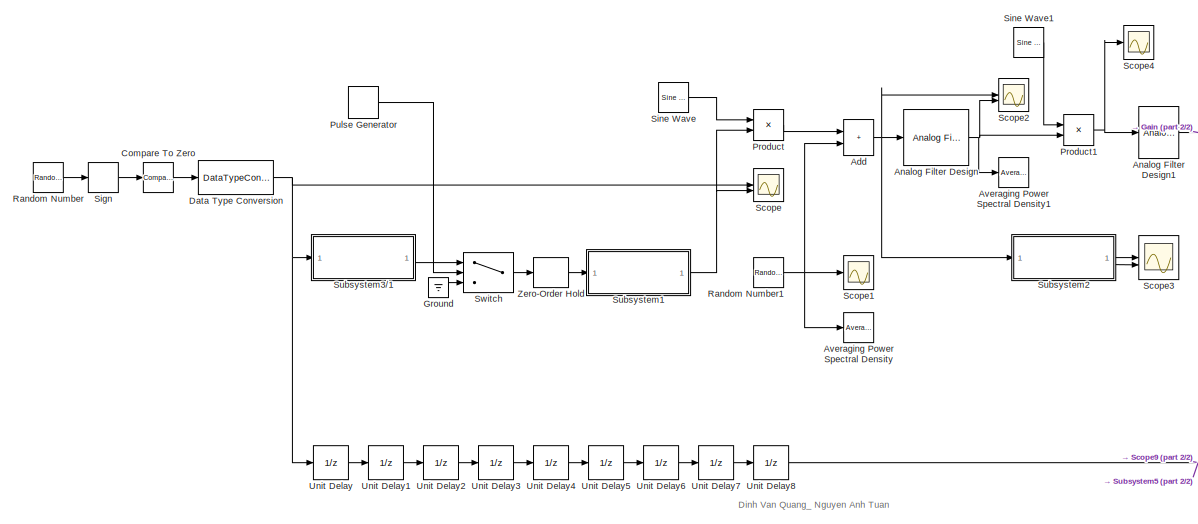
[diagram: root canvas - part 1/2, left side, full height]
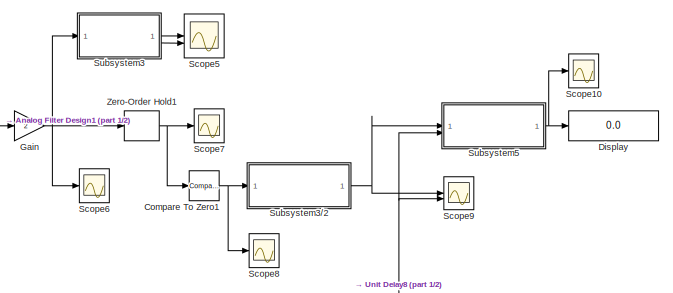
[diagram: root canvas - part 2/2, top right region]
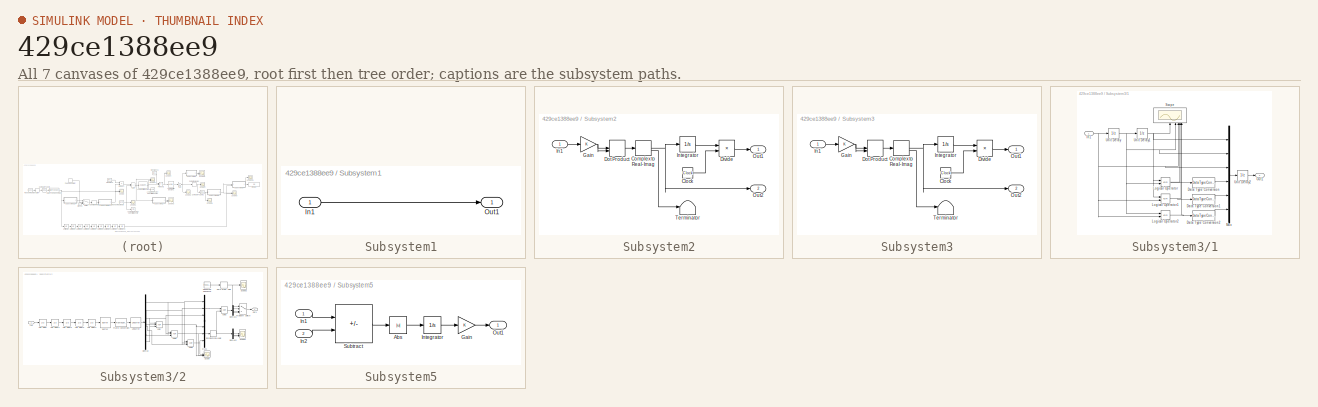
[diagram: thumbnail index - all 7 canvases of the model, root first then tree order]
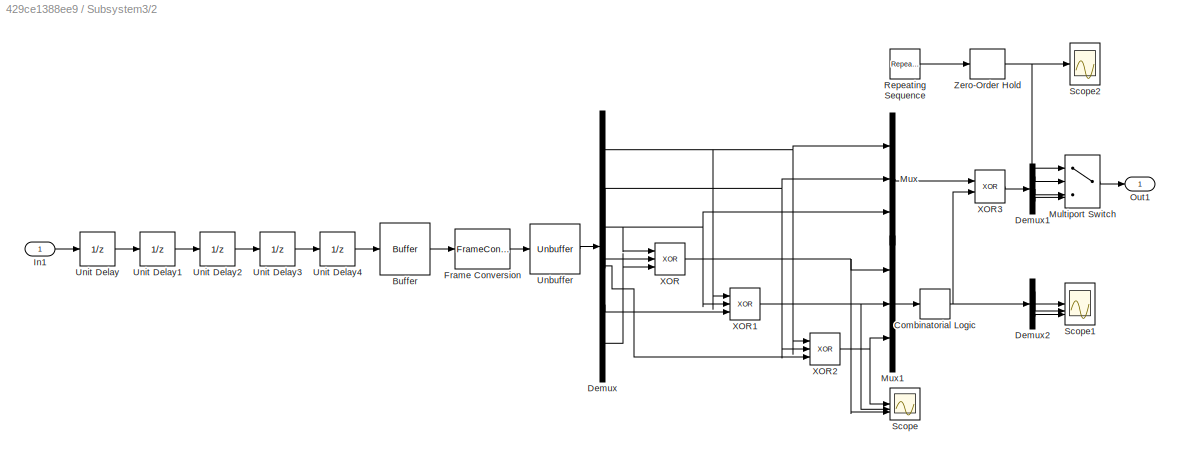
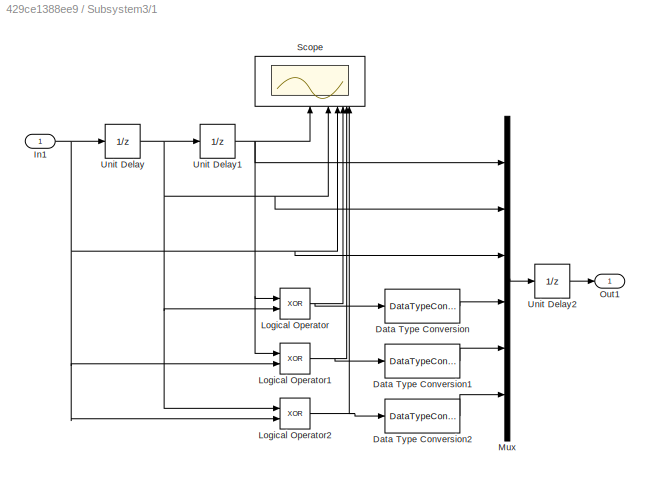
MODEL slx_429ce1388ee9
KIND model
CONFIG AbsTol = auto
CONFIG EnableMultiTasking = on
CONFIG FixedStep = auto
CONFIG MaxStep = auto
CONFIG MinStep = auto
CONFIG RelTol = 1e-3
CONFIG SampleTimeConstraint = Unconstrained
CONFIG SolverName = VariableStepAuto
CONFIG StartTime = 0.0
CONFIG StopTime = 10.0
BLOCK [Sum] Add
  IconShape = rectangular
BLOCK [Reference] Analog Filter Design  REF=dspfdesign/Analog
Filter Design
  SourceBlock = dspfdesign/Analog\nFilter Design
  SourceType = Analog Filter Design
BLOCK [Reference] Analog Filter Design1  REF=dspfdesign/Analog
Filter Design
  SourceBlock = dspfdesign/Analog\nFilter Design
  SourceType = Analog Filter Design
BLOCK [Reference] Averaging Power Spectral Density  REF=simulink_extras/Additional
Sinks/Averaging
Power Spectral
Density
  SourceBlock = simulink_extras/Additional\nSinks/Averaging\nPower Spectral\nDensity
  SourceType = Averaging Power Spectral Density
BLOCK [Reference] Averaging Power Spectral Density1  REF=simulink_extras/Additional
Sinks/Averaging
Power Spectral
Density
  SourceBlock = simulink_extras/Additional\nSinks/Averaging\nPower Spectral\nDensity
  SourceType = Averaging Power Spectral Density
BLOCK [Reference] Compare To Zero  REF=simulink/Logic and Bit
Operations/Compare
To Zero
  SourceBlock = simulink/Logic and Bit\nOperations/Compare\nTo Zero
  SourceType = Compare To Zero
BLOCK [Reference] Compare To Zero1  REF=simulink/Logic and Bit
Operations/Compare
To Zero
  SourceBlock = simulink/Logic and Bit\nOperations/Compare\nTo Zero
  SourceType = Compare To Zero
BLOCK [DataTypeConversion] Data Type Conversion
  OutDataTypeStr = double
  RndMeth = Floor
  SaturateOnIntegerOverflow = off
BLOCK [Display] Display
  Decimation = 1
BLOCK [Gain] Gain
  Gain = 2
BLOCK [Ground] Ground
BLOCK [Product] Product
BLOCK [Product] Product1
BLOCK [DiscretePulseGenerator] Pulse Generator
  Period = 10
  PulseType = Time based
  PulseWidth = 5
BLOCK [RandomNumber] Random Number
  SampleTime = 0.1
BLOCK [RandomNumber] Random Number1
  SampleTime = 0.1
BLOCK [Scope] Scope
  Floating = off
  NumInputPorts = 2
  ScopeSpecificationString = C++SS(StrPVP('SaveName','ScopeData'),StrPVP('LimitDataPoints','on'),StrPVP('DataFormat','Array'),StrPVP('Decimation','1'),StrPVP('BlockParamSampleInput','off'))
BLOCK [Scope] Scope1
  Floating = off
  NumInputPorts = 1
  ScopeSpecificationString = C++SS(StrPVP('SaveName','ScopeData'),StrPVP('SaveName','ScopeData1'),StrPVP('LimitDataPoints','on'),StrPVP('DataFormat','Array'),StrPVP('Decimation','1'),StrPVP('BlockParamSampleInput','off'))
BLOCK [Scope] Scope10
  Floating = off
  NumInputPorts = 1
  ScopeSpecificationString = C++SS(StrPVP('SaveName','ScopeData'),StrPVP('SaveName','ScopeData1'),StrPVP('SaveName','ScopeData4'),StrPVP('SaveName','ScopeData7'),StrPVP('SaveName','ScopeData10'),StrPVP('LimitDataPoints','on'),StrPVP('DataFormat','Array'),StrPVP('Decimation','1'),StrPVP('BlockParamSampleInput','off'))
BLOCK [Scope] Scope2
  Floating = off
  NumInputPorts = 2
  ScopeSpecificationString = Simulink.scopes.TimeScopeBlockCfg('CurrentConfiguration', extmgr.ConfigurationSet(extmgr.Configuration('Core','General UI',true),extmgr.Configuration('Core','Source UI',true),extmgr.Configuration('Sources','WiredSimulink',true,'DataLoggingVariableName','ScopeData2','DataLoggingLimitDataPoints',true,'DataLoggingSaveFormat','Array','DataLoggingDecimation','1','DataLoggingDecimateData',true),extmgr.C...<+165ch>
BLOCK [Scope] Scope3
  Floating = off
  NumInputPorts = 2
  ScopeSpecificationString = C++SS(StrPVP('SaveName','ScopeData'),StrPVP('SaveName','ScopeData2'),StrPVP('SaveName','ScopeData3'),StrPVP('LimitDataPoints','on'),StrPVP('DataFormat','Array'),StrPVP('Decimation','1'),StrPVP('BlockParamSampleInput','off'))
BLOCK [Scope] Scope4
  Floating = off
  NumInputPorts = 1
  ScopeSpecificationString = Simulink.scopes.TimeScopeBlockCfg('CurrentConfiguration', extmgr.ConfigurationSet(extmgr.Configuration('Core','General UI',true),extmgr.Configuration('Core','Source UI',true),extmgr.Configuration('Sources','WiredSimulink',true,'DataLoggingVariableName','ScopeData4','DataLoggingLimitDataPoints',true,'DataLoggingSaveFormat','Array','DataLoggingDecimation','1','DataLoggingDecimateData',true),extmgr.C...<+165ch>
BLOCK [Scope] Scope5
  Floating = off
  NumInputPorts = 2
  ScopeSpecificationString = C++SS(StrPVP('SaveName','ScopeData'),StrPVP('SaveName','ScopeData2'),StrPVP('SaveName','ScopeData3'),StrPVP('SaveName','ScopeData5'),StrPVP('LimitDataPoints','on'),StrPVP('DataFormat','Array'),StrPVP('Decimation','1'),StrPVP('BlockParamSampleInput','off'))
BLOCK [Scope] Scope6
  Floating = off
  NumInputPorts = 1
  ScopeSpecificationString = Simulink.scopes.TimeScopeBlockCfg('CurrentConfiguration', extmgr.ConfigurationSet(extmgr.Configuration('Core','General UI',true),extmgr.Configuration('Core','Source UI',true),extmgr.Configuration('Sources','WiredSimulink',true,'DataLoggingVariableName','ScopeData6','DataLoggingLimitDataPoints',true,'DataLoggingSaveFormat','Array','DataLoggingDecimation','1','DataLoggingDecimateData',true),extmgr.C...<+165ch>
BLOCK [Scope] Scope7
  Floating = off
  NumInputPorts = 1
  ScopeSpecificationString = Simulink.scopes.TimeScopeBlockCfg('CurrentConfiguration', extmgr.ConfigurationSet(extmgr.Configuration('Core','General UI',true),extmgr.Configuration('Core','Source UI',true),extmgr.Configuration('Sources','WiredSimulink',true,'DataLoggingVariableName','ScopeData7','DataLoggingLimitDataPoints',true,'DataLoggingSaveFormat','Array','DataLoggingDecimation','1','DataLoggingDecimateData',true),extmgr.C...<+165ch>
BLOCK [Scope] Scope8
  Floating = off
  NumInputPorts = 1
  ScopeSpecificationString = C++SS(StrPVP('SaveName','ScopeData'),StrPVP('SaveName','ScopeData1'),StrPVP('SaveName','ScopeData4'),StrPVP('SaveName','ScopeData7'),StrPVP('SaveName','ScopeData8'),StrPVP('LimitDataPoints','on'),StrPVP('DataFormat','Array'),StrPVP('Decimation','1'),StrPVP('BlockParamSampleInput','off'))
BLOCK [Scope] Scope9
  Floating = off
  NumInputPorts = 2
  ScopeSpecificationString = C++SS(StrPVP('SaveName','ScopeData'),StrPVP('SaveName','ScopeData9'),StrPVP('LimitDataPoints','on'),StrPVP('DataFormat','Array'),StrPVP('Decimation','1'),StrPVP('BlockParamSampleInput','off'))
BLOCK [Signum] Sign
BLOCK [Reference] Sine Wave  REF=dspsrcs4/Sine Wave
  SourceBlock = dspsrcs4/Sine Wave
  SourceType = Sine Wave
BLOCK [Reference] Sine Wave1  REF=dspsrcs4/Sine Wave
  SourceBlock = dspsrcs4/Sine Wave
  SourceType = Sine Wave
BLOCK [SubSystem] Subsystem1
BLOCK [Inport] Subsystem1/In1
BLOCK [Outport] Subsystem1/Out1
BLOCK [SubSystem] Subsystem2
BLOCK [Clock] Subsystem2/Clock
BLOCK [ComplexToRealImag] Subsystem2/Complex to Real-Imag
BLOCK [Product] Subsystem2/Divide
  Inputs = */
BLOCK [DotProduct] Subsystem2/Dot Product
  OutDataTypeStr = Inherit: Inherit via internal rule
BLOCK [Gain] Subsystem2/Gain
BLOCK [Inport] Subsystem2/In1
BLOCK [Integrator] Subsystem2/Integrator
BLOCK [Outport] Subsystem2/Out1
BLOCK [Outport] Subsystem2/Out2
  Port = 2
BLOCK [Terminator] Subsystem2/Terminator
BLOCK [SubSystem] Subsystem3
BLOCK [SubSystem] Subsystem3//1
BLOCK [DataTypeConversion] Subsystem3//1/Data Type Conversion
  RndMeth = Floor
  SaturateOnIntegerOverflow = off
BLOCK [DataTypeConversion] Subsystem3//1/Data Type Conversion1
  RndMeth = Floor
  SaturateOnIntegerOverflow = off
BLOCK [DataTypeConversion] Subsystem3//1/Data Type Conversion2
  RndMeth = Floor
  SaturateOnIntegerOverflow = off
BLOCK [Inport] Subsystem3//1/In1
BLOCK [Logic] Subsystem3//1/Logical Operator
  AllPortsSameDT = off
  Operator = XOR
  OutDataTypeStr = boolean
BLOCK [Logic] Subsystem3//1/Logical Operator1
  AllPortsSameDT = off
  Operator = XOR
  OutDataTypeStr = boolean
BLOCK [Logic] Subsystem3//1/Logical Operator2
  AllPortsSameDT = off
  Operator = XOR
  OutDataTypeStr = boolean
BLOCK [Mux] Subsystem3//1/Mux
  DisplayOption = bar
  Inputs = 6
BLOCK [Outport] Subsystem3//1/Out1
BLOCK [Scope] Subsystem3//1/Scope
  Floating = off
  NameLocation = right
  NumInputPorts = 6
  ScopeSpecificationString = C++SS(StrPVP('SaveName','ScopeData1'),StrPVP('LimitDataPoints','on'),StrPVP('DataFormat','Array'),StrPVP('Decimation','1'),StrPVP('BlockParamSampleInput','off'))
BLOCK [UnitDelay] Subsystem3//1/Unit Delay
  HasFrameUpgradeWarning = on
  SampleTime = -1
BLOCK [UnitDelay] Subsystem3//1/Unit Delay1
  HasFrameUpgradeWarning = on
  SampleTime = -1
BLOCK [UnitDelay] Subsystem3//1/Unit Delay2
  HasFrameUpgradeWarning = on
  SampleTime = -1
BLOCK [SubSystem] Subsystem3//2
BLOCK [Buffer] Subsystem3//2/Buffer
  OutputFrames = off
BLOCK [CombinatorialLogic] Subsystem3//2/Combinatorial Logic
BLOCK [Demux] Subsystem3//2/Demux
  Outputs = 6
BLOCK [Demux] Subsystem3//2/Demux1
  Outputs = 3
BLOCK [Demux] Subsystem3//2/Demux2
  Outputs = 3
BLOCK [FrameConversion] Subsystem3//2/Frame Conversion
  OutFrame = Sample-based
BLOCK [Inport] Subsystem3//2/In1
BLOCK [MultiPortSwitch] Subsystem3//2/Multiport Switch
  InputSameDT = off
  SaturateOnIntegerOverflow = off
BLOCK [Mux] Subsystem3//2/Mux
  DisplayOption = bar
  Inputs = 3
BLOCK [Mux] Subsystem3//2/Mux1
  DisplayOption = bar
  Inputs = 3
BLOCK [Outport] Subsystem3//2/Out1
BLOCK [Reference] Subsystem3//2/Repeating Sequence  REF=simulink/Sources/Repeating
Sequence
  SourceBlock = simulink/Sources/Repeating\nSequence
  SourceType = Repeating table
BLOCK [Scope] Subsystem3//2/Scope
  Floating = off
  NumInputPorts = 3
  ScopeSpecificationString = Simulink.scopes.TimeScopeBlockCfg('CurrentConfiguration', extmgr.ConfigurationSet(extmgr.Configuration('Core','General UI',true),extmgr.Configuration('Core','Source UI',true),extmgr.Configuration('Sources','WiredSimulink',true,'DataLoggingVariableName','ScopeData2','DataLoggingLimitDataPoints',true,'DataLoggingSaveFormat','Array','DataLoggingDecimation','1','DataLoggingDecimateData',true),extmgr.C...<+183ch>
BLOCK [Scope] Subsystem3//2/Scope1
  Floating = off
  NumInputPorts = 3
  ScopeSpecificationString = C++SS(StrPVP('SaveName','ScopeData2'),StrPVP('SaveName','ScopeData3'),StrPVP('LimitDataPoints','on'),StrPVP('DataFormat','Array'),StrPVP('Decimation','1'),StrPVP('BlockParamSampleInput','off'))
BLOCK [Scope] Subsystem3//2/Scope2
  Floating = off
  NumInputPorts = 1
  ScopeSpecificationString = Simulink.scopes.TimeScopeBlockCfg('CurrentConfiguration', extmgr.ConfigurationSet(extmgr.Configuration('Core','General UI',true),extmgr.Configuration('Core','Source UI',true),extmgr.Configuration('Sources','WiredSimulink',true,'DataLoggingVariableName','ScopeData4'),extmgr.Configuration('Visuals','Time Domain',true),extmgr.Configuration('Tools','Plot Navigation',true),extmgr.Configuration('Tools',...<+58ch>
BLOCK [Unbuffer] Subsystem3//2/Unbuffer
BLOCK [UnitDelay] Subsystem3//2/Unit Delay
  HasFrameUpgradeWarning = on
  SampleTime = -1
BLOCK [UnitDelay] Subsystem3//2/Unit Delay1
  HasFrameUpgradeWarning = on
  SampleTime = -1
BLOCK [UnitDelay] Subsystem3//2/Unit Delay2
  HasFrameUpgradeWarning = on
  SampleTime = -1
BLOCK [UnitDelay] Subsystem3//2/Unit Delay3
  HasFrameUpgradeWarning = on
  SampleTime = -1
BLOCK [UnitDelay] Subsystem3//2/Unit Delay4
  HasFrameUpgradeWarning = on
  SampleTime = -1
BLOCK [Logic] Subsystem3//2/XOR
  AllPortsSameDT = off
  Inputs = 3
  Operator = XOR
  OutDataTypeStr = boolean
BLOCK [Logic] Subsystem3//2/XOR1
  AllPortsSameDT = off
  Inputs = 3
  Operator = XOR
  OutDataTypeStr = boolean
BLOCK [Logic] Subsystem3//2/XOR2
  AllPortsSameDT = off
  Inputs = 3
  Operator = XOR
  OutDataTypeStr = boolean
BLOCK [Logic] Subsystem3//2/XOR3
  AllPortsSameDT = off
  Operator = XOR
  OutDataTypeStr = boolean
BLOCK [ZeroOrderHold] Subsystem3//2/Zero-Order Hold
  SampleTime = -1
BLOCK [Clock] Subsystem3/Clock
BLOCK [ComplexToRealImag] Subsystem3/Complex to Real-Imag
BLOCK [Product] Subsystem3/Divide
  Inputs = */
BLOCK [DotProduct] Subsystem3/Dot Product
  OutDataTypeStr = Inherit: Inherit via internal rule
BLOCK [Gain] Subsystem3/Gain
BLOCK [Inport] Subsystem3/In1
BLOCK [Integrator] Subsystem3/Integrator
BLOCK [Outport] Subsystem3/Out1
BLOCK [Outport] Subsystem3/Out2
  Port = 2
BLOCK [Terminator] Subsystem3/Terminator
BLOCK [SubSystem] Subsystem5
BLOCK [Abs] Subsystem5/Abs
  SaturateOnIntegerOverflow = off
BLOCK [Gain] Subsystem5/Gain
BLOCK [Inport] Subsystem5/In1
BLOCK [Inport] Subsystem5/In2
  Port = 2
BLOCK [Integrator] Subsystem5/Integrator
BLOCK [Outport] Subsystem5/Out1
BLOCK [Sum] Subsystem5/Subtract
  IconShape = rectangular
  Inputs = +-
BLOCK [Switch] Switch
  InputSameDT = off
  SaturateOnIntegerOverflow = off
BLOCK [UnitDelay] Unit Delay
  HasFrameUpgradeWarning = on
  SampleTime = -1
BLOCK [UnitDelay] Unit Delay1
  HasFrameUpgradeWarning = on
  SampleTime = -1
BLOCK [UnitDelay] Unit Delay2
  HasFrameUpgradeWarning = on
  SampleTime = -1
BLOCK [UnitDelay] Unit Delay3
  HasFrameUpgradeWarning = on
  SampleTime = -1
BLOCK [UnitDelay] Unit Delay4
  HasFrameUpgradeWarning = on
  SampleTime = -1
BLOCK [UnitDelay] Unit Delay5
  HasFrameUpgradeWarning = on
  SampleTime = -1
BLOCK [UnitDelay] Unit Delay6
  HasFrameUpgradeWarning = on
  SampleTime = -1
BLOCK [UnitDelay] Unit Delay7
  HasFrameUpgradeWarning = on
  SampleTime = -1
BLOCK [UnitDelay] Unit Delay8
  HasFrameUpgradeWarning = on
  SampleTime = -1
BLOCK [ZeroOrderHold] Zero-Order Hold
  SampleTime = -1
BLOCK [ZeroOrderHold] Zero-Order Hold1
  SampleTime = -1
ANNOTATION (root): Dinh Van Quang_ Nguyen Anh Tuan
NET Add:1 -> Analog Filter Design:1, Scope2:1, Subsystem2:1
LINE Analog Filter Design1:1 -> Gain:1
NET Analog Filter Design:1 -> Averaging Power Spectral Density1:1, Product1:2, Scope2:2
NET Compare To Zero1:1 -> Scope8:1, Subsystem3//2:1
LINE Compare To Zero:1 -> Data Type Conversion:1
NET Data Type Conversion:1 -> Scope:1, Subsystem3//1:1, Unit Delay:1
NET Gain:1 -> Scope6:1, Subsystem3:1, Zero-Order Hold1:1
LINE Ground:1 -> Switch:3
NET Product1:1 -> Analog Filter Design1:1, Scope4:1
LINE Product:1 -> Add:1
LINE Pulse Generator:1 -> Switch:2
NET Random Number1:1 -> Add:2, Averaging Power Spectral Density:1, Scope1:1
LINE Random Number:1 -> Sign:1
LINE Sign:1 -> Compare To Zero:1
LINE Sine Wave1:1 -> Product1:1
LINE Sine Wave:1 -> Product:1
LINE Subsystem1/In1:1 -> Subsystem1/Out1:1
NET Subsystem1:1 -> Product:2, Scope:2
LINE Subsystem2/Clock:1 -> Subsystem2/Divide:2
NET Subsystem2/Complex to Real-Imag:1 -> Subsystem2/Integrator:1, Subsystem2/Out2:1
LINE Subsystem2/Complex to Real-Imag:2 -> Subsystem2/Terminator:1
LINE Subsystem2/Divide:1 -> Subsystem2/Out1:1
LINE Subsystem2/Dot Product:1 -> Subsystem2/Complex to Real-Imag:1
NET Subsystem2/Gain:1 -> Subsystem2/Dot Product:1, Subsystem2/Dot Product:2
LINE Subsystem2/In1:1 -> Subsystem2/Gain:1
LINE Subsystem2/Integrator:1 -> Subsystem2/Divide:1
LINE Subsystem2:1 -> Scope3:1
LINE Subsystem2:2 -> Scope3:2
LINE Subsystem3//1/Data Type Conversion1:1 -> Subsystem3//1/Mux:5
LINE Subsystem3//1/Data Type Conversion2:1 -> Subsystem3//1/Mux:6
LINE Subsystem3//1/Data Type Conversion:1 -> Subsystem3//1/Mux:4
NET Subsystem3//1/In1:1 -> Subsystem3//1/Logical Operator1:2, Subsystem3//1/Logical Operator2:2, Subsystem3//1/Mux:3, Subsystem3//1/Scope:3, Subsystem3//1/Unit Delay:1
NET Subsystem3//1/Logical Operator1:1 -> Subsystem3//1/Data Type Conversion1:1, Subsystem3//1/Scope:5
NET Subsystem3//1/Logical Operator2:1 -> Subsystem3//1/Data Type Conversion2:1, Subsystem3//1/Scope:6
NET Subsystem3//1/Logical Operator:1 -> Subsystem3//1/Data Type Conversion:1, Subsystem3//1/Scope:4
LINE Subsystem3//1/Mux:1 -> Subsystem3//1/Unit Delay2:1
NET Subsystem3//1/Unit Delay1:1 -> Subsystem3//1/Logical Operator1:1, Subsystem3//1/Logical Operator:1, Subsystem3//1/Mux:1, Subsystem3//1/Scope:1
LINE Subsystem3//1/Unit Delay2:1 -> Subsystem3//1/Out1:1
NET Subsystem3//1/Unit Delay:1 -> Subsystem3//1/Logical Operator2:1, Subsystem3//1/Logical Operator:2, Subsystem3//1/Mux:2, Subsystem3//1/Scope:2, Subsystem3//1/Unit Delay1:1
LINE Subsystem3//1:1 -> Switch:1
LINE Subsystem3//2/Buffer:1 -> Subsystem3//2/Frame Conversion:1
NET Subsystem3//2/Combinatorial Logic:1 -> Subsystem3//2/Demux2:1, Subsystem3//2/XOR3:2
LINE Subsystem3//2/Demux1:1 -> Subsystem3//2/Multiport Switch:2
LINE Subsystem3//2/Demux1:2 -> Subsystem3//2/Multiport Switch:3
LINE Subsystem3//2/Demux1:3 -> Subsystem3//2/Multiport Switch:4
LINE Subsystem3//2/Demux2:1 -> Subsystem3//2/Scope1:1
LINE Subsystem3//2/Demux2:2 -> Subsystem3//2/Scope1:2
LINE Subsystem3//2/Demux2:3 -> Subsystem3//2/Scope1:3
NET Subsystem3//2/Demux:1 -> Subsystem3//2/Mux:1, Subsystem3//2/XOR1:1, Subsystem3//2/XOR2:1
NET Subsystem3//2/Demux:2 -> Subsystem3//2/Mux:2, Subsystem3//2/XOR2:2, Subsystem3//2/XOR:2
NET Subsystem3//2/Demux:3 -> Subsystem3//2/Mux:3, Subsystem3//2/XOR1:2, Subsystem3//2/XOR:1
LINE Subsystem3//2/Demux:4 -> Subsystem3//2/XOR2:3
LINE Subsystem3//2/Demux:5 -> Subsystem3//2/XOR1:3
LINE Subsystem3//2/Demux:6 -> Subsystem3//2/XOR:3
LINE Subsystem3//2/Frame Conversion:1 -> Subsystem3//2/Unbuffer:1
LINE Subsystem3//2/In1:1 -> Subsystem3//2/Unit Delay:1
LINE Subsystem3//2/Multiport Switch:1 -> Subsystem3//2/Out1:1
LINE Subsystem3//2/Mux1:1 -> Subsystem3//2/Combinatorial Logic:1
LINE Subsystem3//2/Mux:1 -> Subsystem3//2/XOR3:1
LINE Subsystem3//2/Repeating Sequence:1 -> Subsystem3//2/Zero-Order Hold:1
LINE Subsystem3//2/Unbuffer:1 -> Subsystem3//2/Demux:1
LINE Subsystem3//2/Unit Delay1:1 -> Subsystem3//2/Unit Delay2:1
LINE Subsystem3//2/Unit Delay2:1 -> Subsystem3//2/Unit Delay3:1
LINE Subsystem3//2/Unit Delay3:1 -> Subsystem3//2/Unit Delay4:1
LINE Subsystem3//2/Unit Delay4:1 -> Subsystem3//2/Buffer:1
LINE Subsystem3//2/Unit Delay:1 -> Subsystem3//2/Unit Delay1:1
NET Subsystem3//2/XOR1:1 -> Subsystem3//2/Mux1:2, Subsystem3//2/Scope:2
NET Subsystem3//2/XOR2:1 -> Subsystem3//2/Mux1:3, Subsystem3//2/Scope:1
LINE Subsystem3//2/XOR3:1 -> Subsystem3//2/Demux1:1
NET Subsystem3//2/XOR:1 -> Subsystem3//2/Mux1:1, Subsystem3//2/Scope:3
NET Subsystem3//2/Zero-Order Hold:1 -> Subsystem3//2/Multiport Switch:1, Subsystem3//2/Scope2:1
NET Subsystem3//2:1 -> Scope9:1, Subsystem5:1
LINE Subsystem3/Clock:1 -> Subsystem3/Divide:2
NET Subsystem3/Complex to Real-Imag:1 -> Subsystem3/Integrator:1, Subsystem3/Out2:1
LINE Subsystem3/Complex to Real-Imag:2 -> Subsystem3/Terminator:1
LINE Subsystem3/Divide:1 -> Subsystem3/Out1:1
LINE Subsystem3/Dot Product:1 -> Subsystem3/Complex to Real-Imag:1
NET Subsystem3/Gain:1 -> Subsystem3/Dot Product:1, Subsystem3/Dot Product:2
LINE Subsystem3/In1:1 -> Subsystem3/Gain:1
LINE Subsystem3/Integrator:1 -> Subsystem3/Divide:1
LINE Subsystem3:1 -> Scope5:1
LINE Subsystem3:2 -> Scope5:2
LINE Subsystem5/Abs:1 -> Subsystem5/Integrator:1
LINE Subsystem5/Gain:1 -> Subsystem5/Out1:1
LINE Subsystem5/In1:1 -> Subsystem5/Subtract:1
LINE Subsystem5/In2:1 -> Subsystem5/Subtract:2
LINE Subsystem5/Integrator:1 -> Subsystem5/Gain:1
LINE Subsystem5/Subtract:1 -> Subsystem5/Abs:1
NET Subsystem5:1 -> Display:1, Scope10:1
LINE Switch:1 -> Zero-Order Hold:1
LINE Unit Delay1:1 -> Unit Delay2:1
LINE Unit Delay2:1 -> Unit Delay3:1
LINE Unit Delay3:1 -> Unit Delay4:1
LINE Unit Delay4:1 -> Unit Delay5:1
LINE Unit Delay5:1 -> Unit Delay6:1
LINE Unit Delay6:1 -> Unit Delay7:1
LINE Unit Delay7:1 -> Unit Delay8:1
NET Unit Delay8:1 -> Scope9:2, Subsystem5:2
LINE Unit Delay:1 -> Unit Delay1:1
NET Zero-Order Hold1:1 -> Compare To Zero1:1, Scope7:1
LINE Zero-Order Hold:1 -> Subsystem1:1
note: NET lines group one-source signal fan-out (src -> all destinations, sorted); 1:1 wires keep LINE
